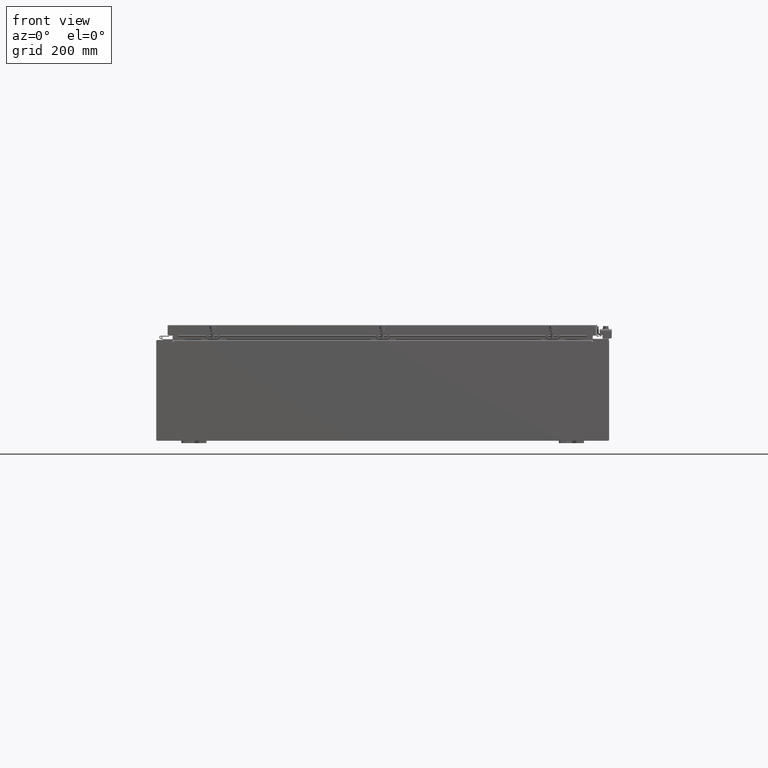
[diagram: clean part render]
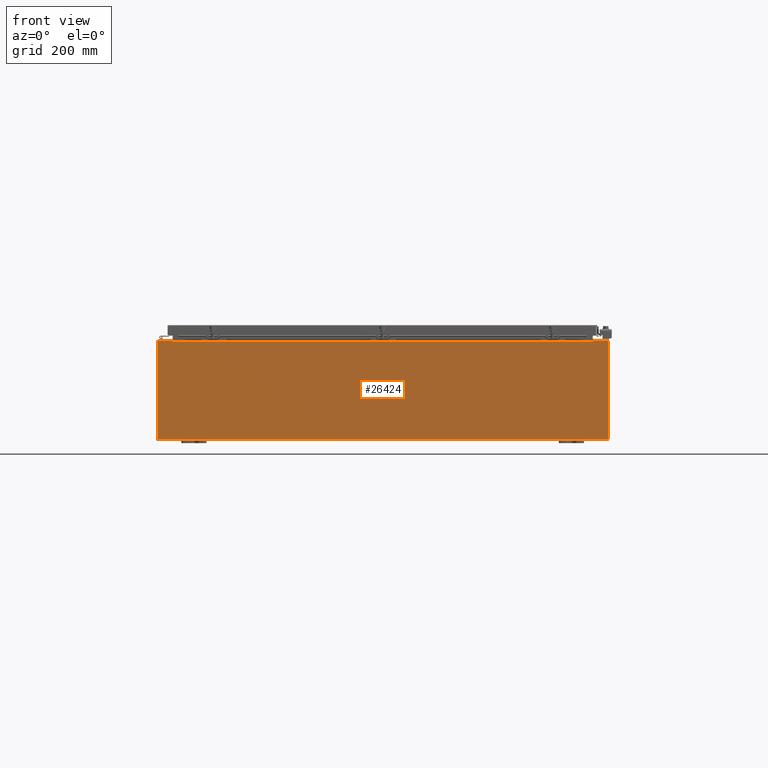
[diagram: same view with one face highlighted and labeled with its STEP entity id]
A machine part, front view. The second image highlights one B-rep face of the part: STEP entity #26424.
In plain terms, the highlighted planar face has unit normal (-0, 1, -0).
Its self-contained STEP definition (entity closure, byte-faithful):
#276 = VECTOR ( 'NONE', #14199, 39.37007874015748100 ) ;
#375 = CARTESIAN_POINT ( 'NONE',  ( 16.63720000000000700, 0.0000000000000000000, 3.912300000000000100 ) ) ;
#1232 = DIRECTION ( 'NONE',  ( 0.0000000000000000000, 0.0000000000000000000, -1.000000000000000000 ) ) ;
#1289 = VERTEX_POINT ( 'NONE', #48030 ) ;
#1399 = CARTESIAN_POINT ( 'NONE',  ( -16.63719999999999600, 3.756290991288361700E-016, 3.912300000000000100 ) ) ;
#1425 = DIRECTION ( 'NONE',  ( 0.0000000000000000000, -1.000000000000000000, 0.0000000000000000000 ) ) ;
#1612 = VECTOR ( 'NONE', #22395, 39.37007874015748100 ) ;
#1769 = VERTEX_POINT ( 'NONE', #35370 ) ;
#1964 = EDGE_CURVE ( 'NONE', #1769, #32873, #10199, .T. ) ;
#2305 = EDGE_CURVE ( 'NONE', #48937, #7421, #13714, .T. ) ;
#3127 = EDGE_CURVE ( 'NONE', #48937, #30075, #9269, .T. ) ;
#4608 = EDGE_CURVE ( 'NONE', #30075, #1769, #16329, .T. ) ;
#4965 = ORIENTED_EDGE ( 'NONE', *, *, #3127, .F. ) ;
#5942 = ORIENTED_EDGE ( 'NONE', *, *, #1964, .F. ) ;
#6448 = ORIENTED_EDGE ( 'NONE', *, *, #13144, .F. ) ;
#6492 = VERTEX_POINT ( 'NONE', #39560 ) ;
#7214 = AXIS2_PLACEMENT_3D ( 'NONE', #46986, #24093, #1232 ) ;
#7421 = VERTEX_POINT ( 'NONE', #375 ) ;
#8288 = VECTOR ( 'NONE', #42310, 39.37007874015748100 ) ;
#8642 = CARTESIAN_POINT ( 'NONE',  ( 16.67455000000001100, 0.0000000000000000000, 3.925300000000000500 ) ) ;
#9120 = CARTESIAN_POINT ( 'NONE',  ( -16.63719999999999600, -0.0000000000000000000, 3.874950000000000100 ) ) ;
#9269 = LINE ( 'NONE', #48240, #276 ) ;
#9478 = LINE ( 'NONE', #15576, #8288 ) ;
#10199 = LINE ( 'NONE', #23502, #48387 ) ;
#11190 = DIRECTION ( 'NONE',  ( -8.681145560800009800E-014, 0.0000000000000000000, -1.000000000000000000 ) ) ;
#11637 = ORIENTED_EDGE ( 'NONE', *, *, #24739, .T. ) ;
#11843 = DIRECTION ( 'NONE',  ( 0.0000000000000000000, 0.0000000000000000000, 1.000000000000000000 ) ) ;
#11890 = ORIENTED_EDGE ( 'NONE', *, *, #47735, .F. ) ;
#12253 = AXIS2_PLACEMENT_3D ( 'NONE', #24264, #1425, #28142 ) ;
#12535 = VECTOR ( 'NONE', #11190, 39.37007874015748100 ) ;
#12913 = CARTESIAN_POINT ( 'NONE',  ( -16.65587499999999800, 0.0000000000000000000, 3.874950000000000100 ) ) ;
#13144 = EDGE_CURVE ( 'NONE', #36654, #43959, #41817, .T. ) ;
#13714 = LINE ( 'NONE', #1399, #44191 ) ;
#14199 = DIRECTION ( 'NONE',  ( 0.0000000000000000000, 0.0000000000000000000, -1.000000000000000000 ) ) ;
#14565 = DIRECTION ( 'NONE',  ( 1.000000000000000000, 0.0000000000000000000, 0.0000000000000000000 ) ) ;
#15302 = VECTOR ( 'NONE', #40145, 39.37007874015748100 ) ;
#15526 = ORIENTED_EDGE ( 'NONE', *, *, #21764, .T. ) ;
#15576 = CARTESIAN_POINT ( 'NONE',  ( 17.92530000000000400, 0.0000000000000000000, 3.925300000000000500 ) ) ;
#16329 = CIRCLE ( 'NONE', #37423, 0.01867499999999949400 ) ;
#16992 = EDGE_CURVE ( 'NONE', #19381, #48286, #41065, .T. ) ;
#17011 = CARTESIAN_POINT ( 'NONE',  ( 16.67455000000000700, 0.0000000000000000000, 3.874950000000000100 ) ) ;
#17269 = LINE ( 'NONE', #19916, #19689 ) ;
#19381 = VERTEX_POINT ( 'NONE', #40457 ) ;
#19490 = CARTESIAN_POINT ( 'NONE',  ( 16.63720000000000700, 0.0000000000000000000, 0.0000000000000000000 ) ) ;
#19501 = CARTESIAN_POINT ( 'NONE',  ( -16.67454999999999600, 0.0000000000000000000, 3.925300000000000500 ) ) ;
#19619 = ORIENTED_EDGE ( 'NONE', *, *, #20769, .T. ) ;
#19689 = VECTOR ( 'NONE', #42797, 39.37007874015748100 ) ;
#19916 = CARTESIAN_POINT ( 'NONE',  ( -17.92529999999999600, 0.0000000000000000000, 3.925300000000000500 ) ) ;
#20643 = CARTESIAN_POINT ( 'NONE',  ( -16.63719999999999600, 3.756290991288361700E-016, 3.912300000000000100 ) ) ;
#20769 = EDGE_CURVE ( 'NONE', #48286, #32873, #17269, .T. ) ;
#21764 = EDGE_CURVE ( 'NONE', #49513, #19381, #25614, .T. ) ;
#22395 = DIRECTION ( 'NONE',  ( -0.0000000000000000000, -0.0000000000000000000, 1.000000000000000000 ) ) ;
#23502 = CARTESIAN_POINT ( 'NONE',  ( -16.67454999999999600, -0.0000000000000000000, 0.0000000000000000000 ) ) ;
#24093 = DIRECTION ( 'NONE',  ( -0.0000000000000000000, 1.000000000000000000, -0.0000000000000000000 ) ) ;
#24229 = CIRCLE ( 'NONE', #7214, 0.01867499999999949400 ) ;
#24264 = CARTESIAN_POINT ( 'NONE',  ( 0.0000000000000000000, 0.0000000000000000000, 0.0000000000000000000 ) ) ;
#24509 = VECTOR ( 'NONE', #11843, 39.37007874015748100 ) ;
#24739 = EDGE_CURVE ( 'NONE', #1289, #49513, #9478, .T. ) ;
#25614 = LINE ( 'NONE', #41635, #44787 ) ;
#26268 = DIRECTION ( 'NONE',  ( 0.0000000000000000000, 0.0000000000000000000, -1.000000000000000000 ) ) ;
#26424 = ADVANCED_FACE ( 'NONE', ( #42496 ), #31807, .F. ) ;
#26452 = ORIENTED_EDGE ( 'NONE', *, *, #4608, .F. ) ;
#27131 = ORIENTED_EDGE ( 'NONE', *, *, #33716, .T. ) ;
#27585 = ORIENTED_EDGE ( 'NONE', *, *, #37252, .F. ) ;
#28142 = DIRECTION ( 'NONE',  ( 0.0000000000000000000, -0.0000000000000000000, -1.000000000000000000 ) ) ;
#30075 = VERTEX_POINT ( 'NONE', #9120 ) ;
#30880 = ORIENTED_EDGE ( 'NONE', *, *, #16992, .T. ) ;
#30999 = DIRECTION ( 'NONE',  ( 0.0000000000000000000, 0.0000000000000000000, 1.000000000000000000 ) ) ;
#31807 = PLANE ( 'NONE',  #12253 ) ;
#32873 = VERTEX_POINT ( 'NONE', #19501 ) ;
#33716 = EDGE_CURVE ( 'NONE', #36654, #1289, #35635, .T. ) ;
#35370 = CARTESIAN_POINT ( 'NONE',  ( -16.67454999999999600, 0.0000000000000000000, 3.874950000000000100 ) ) ;
#35635 = LINE ( 'NONE', #36298, #15302 ) ;
#35898 = LINE ( 'NONE', #19490, #24509 ) ;
#36298 = CARTESIAN_POINT ( 'NONE',  ( -17.92529999999999600, 0.0000000000000000000, 3.925300000000000500 ) ) ;
#36654 = VERTEX_POINT ( 'NONE', #8642 ) ;
#37252 = EDGE_CURVE ( 'NONE', #6492, #7421, #35898, .T. ) ;
#37423 = AXIS2_PLACEMENT_3D ( 'NONE', #12913, #43845, #26268 ) ;
#37930 = CARTESIAN_POINT ( 'NONE',  ( 16.67454999999967000, -0.0000000000000000000, -1.447541957108349400E-012 ) ) ;
#38787 = CARTESIAN_POINT ( 'NONE',  ( -17.92529999999999600, 0.0000000000000000000, 3.925300000000000500 ) ) ;
#39560 = CARTESIAN_POINT ( 'NONE',  ( 16.63720000000000700, 0.0000000000000000000, 3.874950000000000100 ) ) ;
#40145 = DIRECTION ( 'NONE',  ( 1.000000000000000000, 0.0000000000000000000, 0.0000000000000000000 ) ) ;
#40457 = CARTESIAN_POINT ( 'NONE',  ( -17.92529999999999600, 0.0000000000000000000, -3.925299999999999100 ) ) ;
#41065 = LINE ( 'NONE', #45324, #1612 ) ;
#41635 = CARTESIAN_POINT ( 'NONE',  ( -17.92529999999999600, 0.0000000000000000000, -3.925299999999999100 ) ) ;
#41817 = LINE ( 'NONE', #37930, #12535 ) ;
#42310 = DIRECTION ( 'NONE',  ( 0.0000000000000000000, 0.0000000000000000000, -1.000000000000000000 ) ) ;
#42496 = FACE_OUTER_BOUND ( 'NONE', #45691, .T. ) ;
#42797 = DIRECTION ( 'NONE',  ( 1.000000000000000000, 0.0000000000000000000, 0.0000000000000000000 ) ) ;
#43668 = CARTESIAN_POINT ( 'NONE',  ( 17.92530000000000400, 0.0000000000000000000, -3.925299999999999100 ) ) ;
#43845 = DIRECTION ( 'NONE',  ( -0.0000000000000000000, 1.000000000000000000, -0.0000000000000000000 ) ) ;
#43959 = VERTEX_POINT ( 'NONE', #17011 ) ;
#44191 = VECTOR ( 'NONE', #14565, 39.37007874015748100 ) ;
#44787 = VECTOR ( 'NONE', #45485, 39.37007874015748100 ) ;
#45324 = CARTESIAN_POINT ( 'NONE',  ( -17.92529999999999600, 0.0000000000000000000, 3.925300000000000500 ) ) ;
#45485 = DIRECTION ( 'NONE',  ( -1.000000000000000000, -0.0000000000000000000, -0.0000000000000000000 ) ) ;
#45691 = EDGE_LOOP ( 'NONE', ( #5942, #26452, #4965, #49124, #27585, #11890, #6448, #27131, #11637, #15526, #30880, #19619 ) ) ;
#46986 = CARTESIAN_POINT ( 'NONE',  ( 16.65587500000000500, 0.0000000000000000000, 3.874950000000000100 ) ) ;
#47735 = EDGE_CURVE ( 'NONE', #43959, #6492, #24229, .T. ) ;
#48030 = CARTESIAN_POINT ( 'NONE',  ( 17.92530000000000400, 0.0000000000000000000, 3.925300000000000500 ) ) ;
#48240 = CARTESIAN_POINT ( 'NONE',  ( -16.63719999999999600, -0.0000000000000000000, 0.0000000000000000000 ) ) ;
#48286 = VERTEX_POINT ( 'NONE', #38787 ) ;
#48387 = VECTOR ( 'NONE', #30999, 39.37007874015748100 ) ;
#48937 = VERTEX_POINT ( 'NONE', #20643 ) ;
#49124 = ORIENTED_EDGE ( 'NONE', *, *, #2305, .T. ) ;
#49513 = VERTEX_POINT ( 'NONE', #43668 ) ;